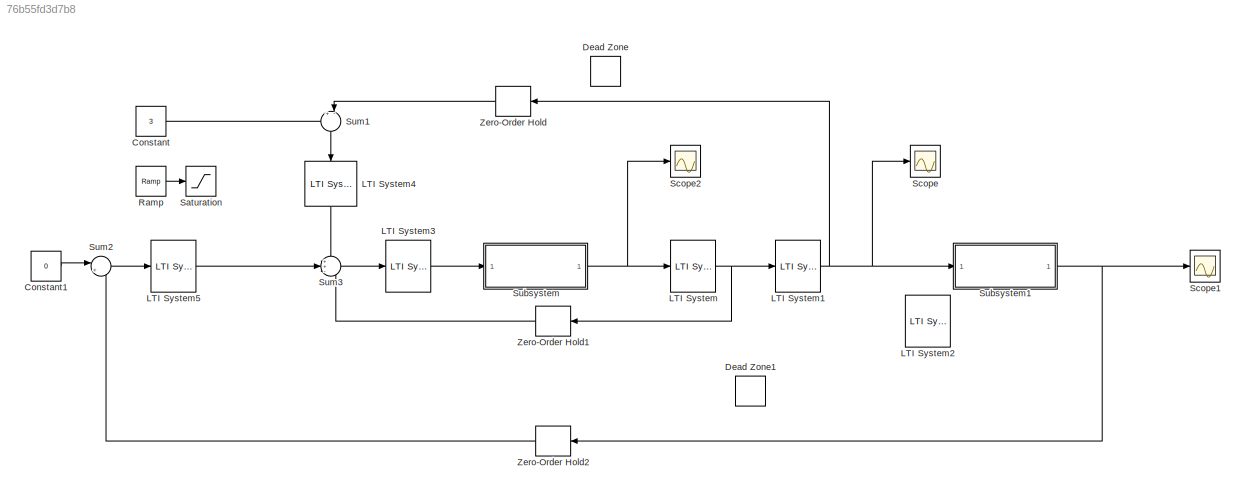
MODEL slx_76b55fd3d7b8
KIND model
CONFIG AbsTol = auto
CONFIG FixedStep = .01
CONFIG MaxStep = auto
CONFIG MinStep = auto
CONFIG RelTol = 1e-3
CONFIG SampleTimeConstraint = Unconstrained
CONFIG Solver = ode3
CONFIG SolverMode = Auto
CONFIG SolverName = ode3
CONFIG StartTime = 0.0
CONFIG StopTime = 50
BLOCK [Constant] Constant
  Value = 3
BLOCK [Constant] Constant1
  Value = 0
BLOCK [DeadZone] Dead Zone
  LowerValue = -0.005
  UpperValue = 0.005
BLOCK [DeadZone] Dead Zone1
  LowerValue = -0.001
  UpperValue = 0.001
BLOCK [Reference] LTI System  REF=cstblocks/LTI System
  IC = []
  Ports = [1, 1]
  SourceBlock = cstblocks/LTI System
  SourceType = LTI Block
  sys = Hv
BLOCK [Reference] LTI System1  REF=cstblocks/LTI System
  IC = []
  Ports = [1, 1]
  SourceBlock = cstblocks/LTI System
  SourceType = LTI Block
  sys = 1/s
BLOCK [Reference] LTI System2  REF=cstblocks/LTI System
  IC = []
  Ports = [1, 1]
  SourceBlock = cstblocks/LTI System
  SourceType = LTI Block
  sys = W
BLOCK [Reference] LTI System3  REF=cstblocks/LTI System
  IC = []
  Ports = [1, 1]
  SourceBlock = cstblocks/LTI System
  SourceType = LTI Block
  sys = C1
BLOCK [Reference] LTI System4  REF=cstblocks/LTI System
  IC = []
  Ports = [1, 1]
  SourceBlock = cstblocks/LTI System
  SourceType = LTI Block
  sys = C2
BLOCK [Reference] LTI System5  REF=cstblocks/LTI System
  IC = []
  Ports = [1, 1]
  SourceBlock = cstblocks/LTI System
  SourceType = LTI Block
  sys = 5
BLOCK [Reference] Ramp  REF=simulink/Sources/Ramp
  Ports = [0, 1]
  SourceBlock = simulink/Sources/Ramp
  SourceType = Ramp
  VectorParams1D = on
  X0 = 0
  slope = .5
  start = 0
BLOCK [Saturate] Saturation
  InputPortMap = u0
  LowerLimit = 0
  Ports = [1, 1]
  UpperLimit = 3
BLOCK [Scope] Scope
  Floating = off
  LimitDataPoints = off
  NumInputPorts = 1
  Ports = [1]
  ZoomMode = yonly
BLOCK [Scope] Scope1
  Floating = off
  LimitDataPoints = off
  NumInputPorts = 1
  Ports = [1]
  SaveName = ScopeData1
  ZoomMode = xonly
BLOCK [Scope] Scope2
  Floating = off
  NumInputPorts = 1
  Ports = [1]
  SaveName = ScopeData2
  ZoomMode = xonly
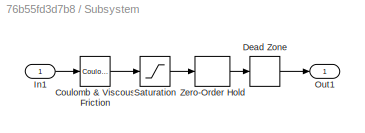
BLOCK [SubSystem] Subsystem
  Ports = [1, 1]
  RequestExecContextInheritance = off
BLOCK [Reference] Subsystem/Coulomb & Viscous Friction  REF=simulink/Discontinuities/Coulomb &
Viscous Friction
  Ports = [1, 1]
  SourceBlock = simulink/Discontinuities/Coulomb &\nViscous Friction
  SourceType = Coulombic and Viscous Friction
  gain = 1
  offset = [4.5]
BLOCK [DeadZone] Subsystem/Dead Zone
  LowerValue = -4.5
  UpperValue = 4.5
BLOCK [Inport] Subsystem/In1
  IconDisplay = Port number
BLOCK [Outport] Subsystem/Out1
  IconDisplay = Port number
BLOCK [Saturate] Subsystem/Saturation
  InputPortMap = u0
  LowerLimit = -12.5
  Ports = [1, 1]
  UpperLimit = 12.5
BLOCK [ZeroOrderHold] Subsystem/Zero-Order Hold
  SampleTime = .01
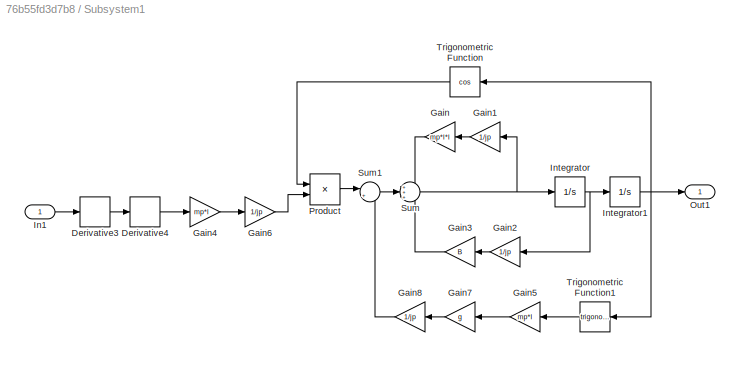
BLOCK [SubSystem] Subsystem1
  Ports = [1, 1]
  RequestExecContextInheritance = off
BLOCK [Derivative] Subsystem1/Derivative3
BLOCK [Derivative] Subsystem1/Derivative4
BLOCK [Gain] Subsystem1/Gain
  Gain = mp*l*l
  OutDataTypeStr = Inherit: Inherit via internal rule
  ParamDataTypeStr = Inherit: Inherit via internal rule
  SaturateOnIntegerOverflow = off
BLOCK [Gain] Subsystem1/Gain1
  Gain = 1/jp
  OutDataTypeStr = Inherit: Inherit via internal rule
  ParamDataTypeStr = Inherit: Inherit via internal rule
  SaturateOnIntegerOverflow = off
BLOCK [Gain] Subsystem1/Gain2
  Gain = 1/jp
  OutDataTypeStr = Inherit: Inherit via internal rule
  ParamDataTypeStr = Inherit: Inherit via internal rule
  SaturateOnIntegerOverflow = off
BLOCK [Gain] Subsystem1/Gain3
  Gain = B
  OutDataTypeStr = Inherit: Inherit via internal rule
  ParamDataTypeStr = Inherit: Inherit via internal rule
  SaturateOnIntegerOverflow = off
BLOCK [Gain] Subsystem1/Gain4
  Gain = mp*l
  OutDataTypeStr = Inherit: Inherit via internal rule
  ParamDataTypeStr = Inherit: Inherit via internal rule
  SaturateOnIntegerOverflow = off
BLOCK [Gain] Subsystem1/Gain5
  Gain = mp*l
  OutDataTypeStr = Inherit: Inherit via internal rule
  ParamDataTypeStr = Inherit: Inherit via internal rule
  SaturateOnIntegerOverflow = off
BLOCK [Gain] Subsystem1/Gain6
  Gain = 1/jp
  OutDataTypeStr = Inherit: Inherit via internal rule
  ParamDataTypeStr = Inherit: Inherit via internal rule
  SaturateOnIntegerOverflow = off
BLOCK [Gain] Subsystem1/Gain7
  Gain = g
  OutDataTypeStr = Inherit: Inherit via internal rule
  ParamDataTypeStr = Inherit: Inherit via internal rule
  SaturateOnIntegerOverflow = off
BLOCK [Gain] Subsystem1/Gain8
  Gain = 1/jp
  OutDataTypeStr = Inherit: Inherit via internal rule
  ParamDataTypeStr = Inherit: Inherit via internal rule
  SaturateOnIntegerOverflow = off
BLOCK [Inport] Subsystem1/In1
  IconDisplay = Port number
BLOCK [Integrator] Subsystem1/Integrator
  Ports = [1, 1]
BLOCK [Integrator] Subsystem1/Integrator1
  Ports = [1, 1]
BLOCK [Outport] Subsystem1/Out1
  IconDisplay = Port number
BLOCK [Product] Subsystem1/Product
  InputSameDT = off
  OutDataTypeStr = Inherit: Inherit via internal rule
  Ports = [2, 1]
  RndMeth = Floor
  SaturateOnIntegerOverflow = off
BLOCK [Sum] Subsystem1/Sum
  IconShape = round
  InputSameDT = off
  Inputs = +++
  OutDataTypeStr = Inherit: Inherit via internal rule
  Ports = [3, 1]
  SaturateOnIntegerOverflow = off
BLOCK [Sum] Subsystem1/Sum1
  IconShape = round
  InputSameDT = off
  Inputs = |++
  OutDataTypeStr = Inherit: Inherit via internal rule
  Ports = [2, 1]
  SaturateOnIntegerOverflow = off
BLOCK [Trigonometry] Subsystem1/Trigonometric Function
  Operator = cos
  Ports = [1, 1]
BLOCK [Trigonometry] Subsystem1/Trigonometric Function1
  Ports = [1, 1]
BLOCK [Sum] Sum1
  IconShape = round
  InputSameDT = off
  Inputs = +-|
  OutDataTypeStr = Inherit: Inherit via internal rule
  Ports = [2, 1]
  SaturateOnIntegerOverflow = off
BLOCK [Sum] Sum2
  IconShape = round
  InputSameDT = off
  Inputs = |++
  OutDataTypeStr = Inherit: Inherit via internal rule
  Ports = [2, 1]
  SaturateOnIntegerOverflow = off
BLOCK [Sum] Sum3
  IconShape = round
  InputSameDT = off
  Inputs = ++-
  OutDataTypeStr = Inherit: Inherit via internal rule
  Ports = [3, 1]
  SaturateOnIntegerOverflow = off
BLOCK [ZeroOrderHold] Zero-Order Hold
  SampleTime = .01
BLOCK [ZeroOrderHold] Zero-Order Hold1
  SampleTime = .01
BLOCK [ZeroOrderHold] Zero-Order Hold2
  SampleTime = .01
LINE Constant1:1 -> Sum2:1
LINE Constant:1 -> Sum1:1
NET LTI System1:1 -> Scope:1, Subsystem1:1, Zero-Order Hold:1
LINE LTI System3:1 -> Subsystem:1
LINE LTI System4:1 -> Sum3:1
LINE LTI System5:1 -> Sum3:2
NET LTI System:1 -> LTI System1:1, Zero-Order Hold1:1
LINE Ramp:1 -> Saturation:1
LINE Subsystem/Coulomb & Viscous Friction:1 -> Subsystem/Saturation:1
LINE Subsystem/Dead Zone:1 -> Subsystem/Out1:1
LINE Subsystem/In1:1 -> Subsystem/Coulomb & Viscous Friction:1
LINE Subsystem/Saturation:1 -> Subsystem/Zero-Order Hold:1
LINE Subsystem/Zero-Order Hold:1 -> Subsystem/Dead Zone:1
LINE Subsystem1/Derivative3:1 -> Subsystem1/Derivative4:1
LINE Subsystem1/Derivative4:1 -> Subsystem1/Gain4:1
LINE Subsystem1/Gain1:1 -> Subsystem1/Gain:1
LINE Subsystem1/Gain2:1 -> Subsystem1/Gain3:1
LINE Subsystem1/Gain3:1 -> Subsystem1/Sum:3
LINE Subsystem1/Gain4:1 -> Subsystem1/Gain6:1
LINE Subsystem1/Gain5:1 -> Subsystem1/Gain7:1
LINE Subsystem1/Gain6:1 -> Subsystem1/Product:2
LINE Subsystem1/Gain7:1 -> Subsystem1/Gain8:1
LINE Subsystem1/Gain8:1 -> Subsystem1/Sum1:2
LINE Subsystem1/Gain:1 -> Subsystem1/Sum:1
LINE Subsystem1/In1:1 -> Subsystem1/Derivative3:1
NET Subsystem1/Integrator1:1 -> Subsystem1/Out1:1, Subsystem1/Trigonometric Function1:1, Subsystem1/Trigonometric Function:1
NET Subsystem1/Integrator:1 -> Subsystem1/Gain2:1, Subsystem1/Integrator1:1
LINE Subsystem1/Product:1 -> Subsystem1/Sum1:1
LINE Subsystem1/Sum1:1 -> Subsystem1/Sum:2
NET Subsystem1/Sum:1 -> Subsystem1/Gain1:1, Subsystem1/Integrator:1
LINE Subsystem1/Trigonometric Function1:1 -> Subsystem1/Gain5:1
LINE Subsystem1/Trigonometric Function:1 -> Subsystem1/Product:1
NET Subsystem1:1 -> Scope1:1, Zero-Order Hold2:1
NET Subsystem:1 -> LTI System:1, Scope2:1
LINE Sum1:1 -> LTI System4:1
LINE Sum2:1 -> LTI System5:1
LINE Sum3:1 -> LTI System3:1
LINE Zero-Order Hold1:1 -> Sum3:3
LINE Zero-Order Hold2:1 -> Sum2:2
LINE Zero-Order Hold:1 -> Sum1:2
note: NET lines group one-source signal fan-out (src -> all destinations, sorted); 1:1 wires keep LINE
